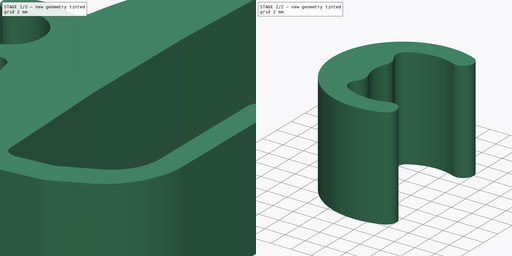
[diagram: build sequence overview — one tinted view per stage of 2, left to right]
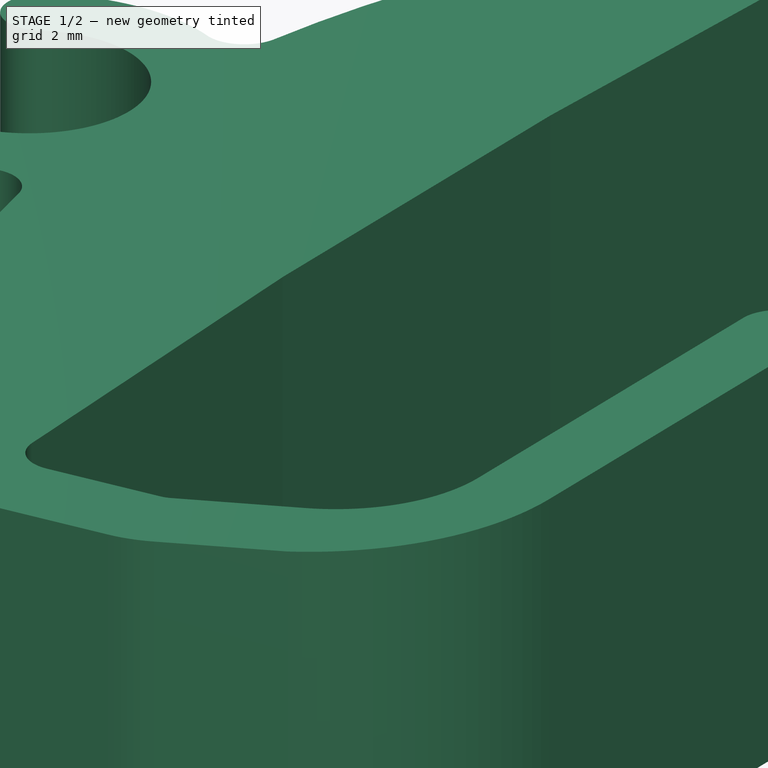
[diagram: stage 1 of 2 — iso view after this stage's code; geometry added in this stage tinted green]
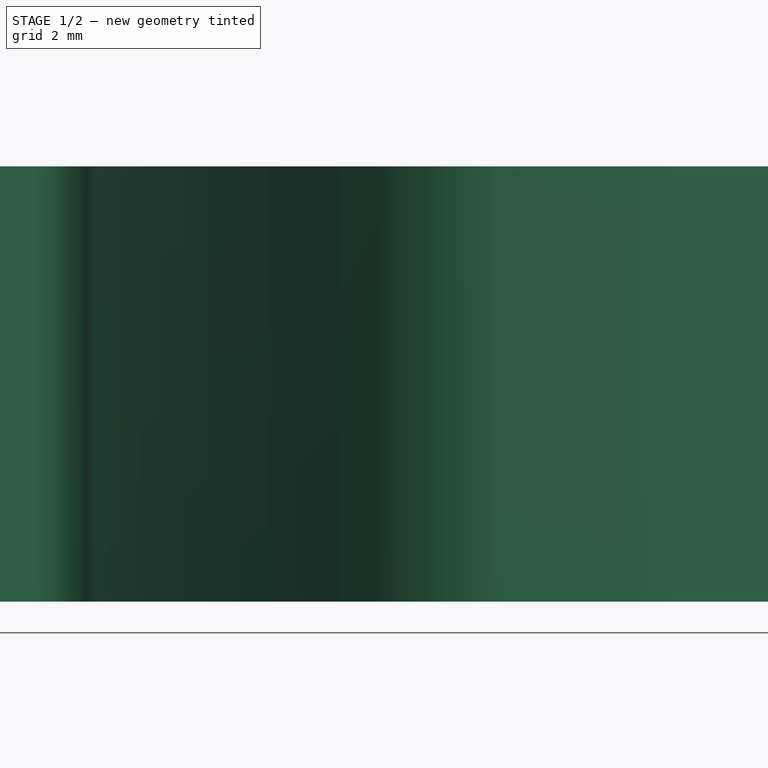
[diagram: stage 1 of 2 — front view after this stage's code; geometry added in this stage tinted green]
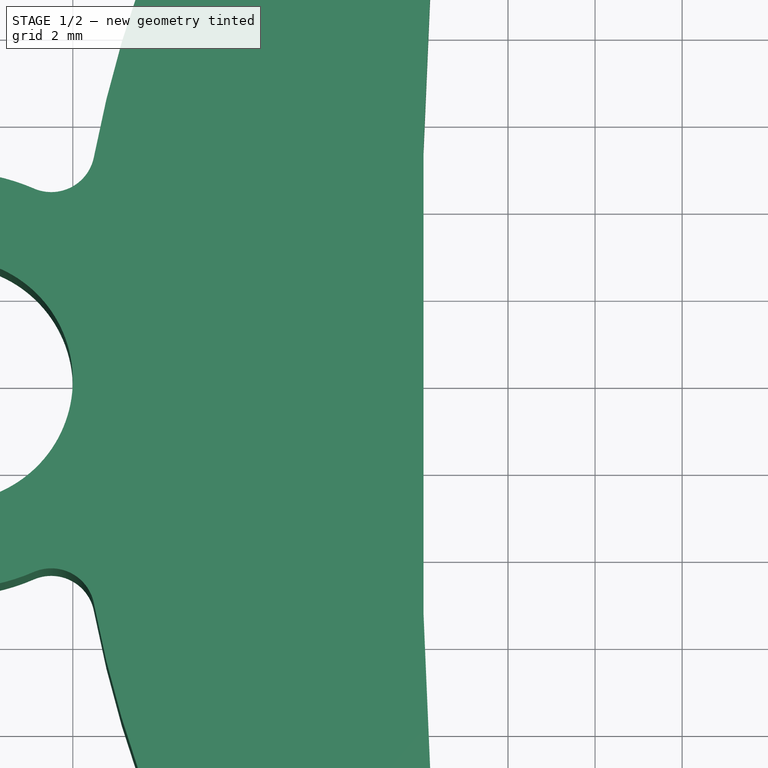
[diagram: stage 1 of 2 — top view after this stage's code; geometry added in this stage tinted green]
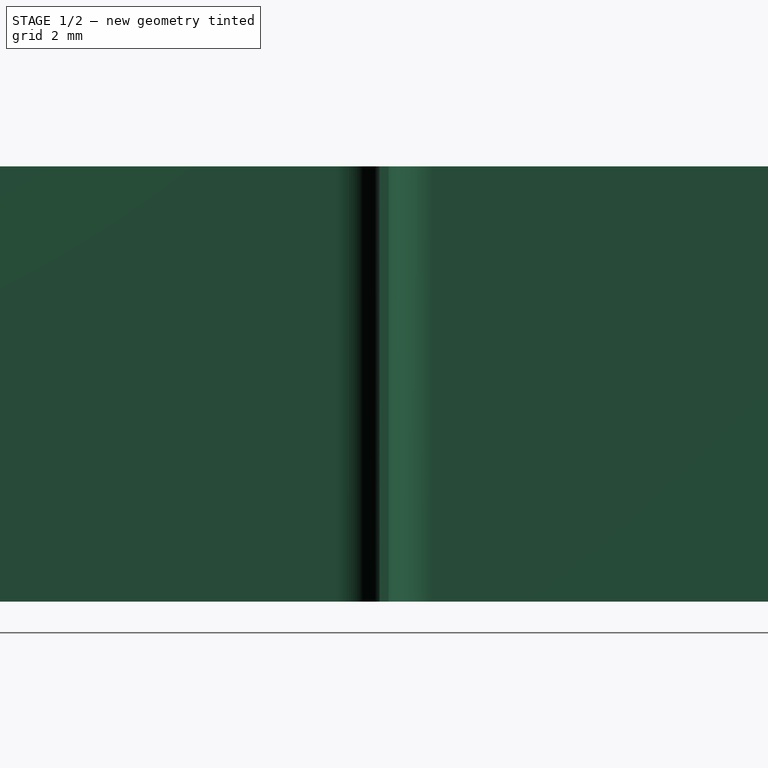
[diagram: stage 1 of 2 — right view after this stage's code; geometry added in this stage tinted green]
FCSTD DOCUMENT  (FreeCAD 0.21R33771 (Git))
Label: Q3LinkCableFix
License: All rights reserved
LicenseURL: http://en.wikipedia.org/wiki/All_rights_reserved
objects: Sketcher::SketchObject×2, PartDesign::Pad×2, PartDesign::Body×2, PartDesign::ShapeBinder×1
note: 9 computed .brp shape members not serialized (recipe doc carries the construction recipe); baked Part::Feature solids carry a one-line shape summary decoded from their .brp

FEATURE [Sketcher::SketchObject] Sketch002
  FullyConstrained = true
  MapMode = 5
  Support = -> [XY_Plane002]
  sketch-geometry (53):
    g0: ArcOfCircle CenterX=258 CenterY=-1e-15 CenterZ=0 NormalX=0 NormalY=0 NormalZ=1 AngleXU=0 Radius=250 StartAngle=3.07729 EndAngle=3.20589
    g1: LineSegment StartX=8 StartY=-1e-15 StartZ=0 EndX=258 EndY=-1e-15 EndZ=0
    g2: LineSegment StartX=8.51665 StartY=16.0643 StartZ=0 EndX=8.51665 EndY=-16.0643 EndZ=0
    g3: ArcOfCircle CenterX=9.51459 CenterY=16 CenterZ=0 NormalX=0 NormalY=0 NormalZ=1 AngleXU=0 Radius=1 StartAngle=1.48353 EndAngle=3.07729
    g4: ArcOfCircle CenterX=9.51459 CenterY=-16 CenterZ=0 NormalX=0 NormalY=0 NormalZ=1 AngleXU=0 Radius=1 StartAngle=3.20589 EndAngle=4.79966
    g5: LineSegment StartX=9.60174 StartY=16.9962 StartZ=0 EndX=12.5903 EndY=16.7347 EndZ=0
    g6: LineSegment StartX=9.60174 StartY=-16.9962 StartZ=0 EndX=12.5903 EndY=-16.7347 EndZ=0
    g7: ArcOfCircle CenterX=12.5206 CenterY=-15.9378 CenterZ=0 NormalX=0 NormalY=0 NormalZ=1 AngleXU=0 Radius=0.8 StartAngle=4.79966 EndAngle=5.14872
    g8: ArcOfCircle CenterX=12.5206 CenterY=15.9378 CenterZ=0 NormalX=0 NormalY=0 NormalZ=1 AngleXU=0 Radius=0.8 StartAngle=1.13446 EndAngle=1.48353
    g9: LineSegment StartX=12.8587 StartY=16.6628 StartZ=0 EndX=15.6905 EndY=15.3423 EndZ=0
    g10: LineSegment StartX=12.8587 StartY=-16.6628 StartZ=0 EndX=15.6905 EndY=-15.3423 EndZ=0
    g11: ArcOfCircle CenterX=14 CenterY=11.7171 CenterZ=0 NormalX=0 NormalY=0 NormalZ=1 AngleXU=0 Radius=4 StartAngle=2e-16 EndAngle=1.13446
    g12: ArcOfCircle CenterX=14 CenterY=-11.7171 CenterZ=0 NormalX=0 NormalY=0 NormalZ=1 AngleXU=0 Radius=4 StartAngle=5.14872 EndAngle=6.28319
    g13: LineSegment StartX=18 StartY=11.7171 StartZ=0 EndX=18 EndY=1.1 EndZ=0
    g14: LineSegment StartX=18 StartY=-11.7171 StartZ=0 EndX=18 EndY=-1.1 EndZ=0
    g15: LineSegment StartX=18 StartY=11.7171 StartZ=0 EndX=20 EndY=11.7171 EndZ=0
    g16: LineSegment StartX=18 StartY=1.1 StartZ=0 EndX=20 EndY=1.1 EndZ=0
    g17: LineSegment StartX=18 StartY=-1.1 StartZ=0 EndX=20 EndY=-1.1 EndZ=0
    g18: LineSegment StartX=18 StartY=-11.7171 StartZ=0 EndX=20 EndY=-11.7171 EndZ=0
    g19: LineSegment StartX=20 StartY=11.7171 StartZ=0 EndX=20 EndY=1.1 EndZ=0
    g20: LineSegment StartX=20 StartY=-1.1 StartZ=0 EndX=20 EndY=-11.7171 EndZ=0
    g21: ArcOfCircle CenterX=19 CenterY=-1.1 CenterZ=0 NormalX=0 NormalY=0 NormalZ=1 AngleXU=0 Radius=1 StartAngle=-9e-16 EndAngle=3.14159
    g22: ArcOfCircle CenterX=19 CenterY=1.1 CenterZ=0 NormalX=0 NormalY=0 NormalZ=1 AngleXU=0 Radius=1 StartAngle=3.14159 EndAngle=6.28319
    g23: LineSegment StartX=19 StartY=0.1 StartZ=0 EndX=19 EndY=-0.1 EndZ=0
    g24: LineSegment StartX=8.51665 StartY=-17 StartZ=0 EndX=9.51459 EndY=-17 EndZ=0
    g25: LineSegment StartX=8.51665 StartY=17 StartZ=0 EndX=9.51459 EndY=17 EndZ=0
    g26: ArcOfCircle CenterX=13.2474 CenterY=11.7171 CenterZ=0 NormalX=0 NormalY=0 NormalZ=1 AngleXU=0 Radius=6.7526 StartAngle=0 EndAngle=1.03328
    g27: LineSegment StartX=15.6905 StartY=15.3423 StartZ=0 EndX=16.7048 EndY=17.5175 EndZ=0
    g28: LineSegment StartX=16.7048 StartY=17.5175 StartZ=0 EndX=13.873 EndY=18.838 EndZ=0
    g29: ArcOfCircle CenterX=12.5206 CenterY=15.9378 CenterZ=0 NormalX=0 NormalY=0 NormalZ=1 AngleXU=0 Radius=3.2 StartAngle=1.13446 EndAngle=1.48353
    g30: LineSegment StartX=12.7995 StartY=19.1256 StartZ=0 EndX=9.81092 EndY=19.3871 EndZ=0
    g31: ArcOfCircle CenterX=13.2474 CenterY=-11.7171 CenterZ=0 NormalX=0 NormalY=0 NormalZ=1 AngleXU=0 Radius=6.7526 StartAngle=5.2499 EndAngle=6.28319
    g32: LineSegment StartX=15.6905 StartY=-15.3423 StartZ=0 EndX=16.7048 EndY=-17.5175 EndZ=0
    g33: LineSegment StartX=16.7048 StartY=-17.5175 StartZ=0 EndX=13.873 EndY=-18.838 EndZ=0
    g34: ArcOfCircle CenterX=12.5206 CenterY=-15.9378 CenterZ=0 NormalX=0 NormalY=0 NormalZ=1 AngleXU=0 Radius=3.2 StartAngle=4.79966 EndAngle=5.14872
    g35: LineSegment StartX=12.7995 StartY=-19.1256 StartZ=0 EndX=9.81092 EndY=-19.3871 EndZ=0
    g36: ArcOfCircle CenterX=9.51459 CenterY=-16 CenterZ=0 NormalX=0 NormalY=0 NormalZ=1 AngleXU=0 Radius=3.4 StartAngle=3.87166 EndAngle=4.79966
    g37: ArcOfCircle CenterX=9.51459 CenterY=16 CenterZ=0 NormalX=0 NormalY=0 NormalZ=1 AngleXU=0 Radius=3.4 StartAngle=1.48353 EndAngle=2.41153
    g38: ArcOfCircle CenterX=27.3908 CenterY=-1e-15 CenterZ=0 NormalX=0 NormalY=0 NormalZ=1 AngleXU=0 Radius=27.3908 StartAngle=2.41152 EndAngle=2.95299
    g39: ArcOfCircle CenterX=27.3908 CenterY=-1e-15 CenterZ=0 NormalX=0 NormalY=0 NormalZ=1 AngleXU=0 Radius=27.3908 StartAngle=2.95299 EndAngle=3.3302
    g40: ArcOfCircle CenterX=27.3908 CenterY=-1e-15 CenterZ=0 NormalX=0 NormalY=0 NormalZ=1 AngleXU=0 Radius=27.3908 StartAngle=3.3302 EndAngle=3.87166
    g41: LineSegment StartX=8 StartY=-1e-15 StartZ=0 EndX=0 EndY=0 EndZ=0
    g42: ArcOfCircle CenterX=-2.8 CenterY=5e-16 CenterZ=0 NormalX=0 NormalY=0 NormalZ=1 AngleXU=0 Radius=2.8 StartAngle=4.18879 EndAngle=8.37758
    g43: ArcOfCircle CenterX=-2.8 CenterY=5e-16 CenterZ=0 NormalX=0 NormalY=0 NormalZ=1 AngleXU=0 Radius=4.8 StartAngle=1.16239 EndAngle=2.0944
    g44: ArcOfCircle CenterX=-2.8 CenterY=5e-16 CenterZ=0 NormalX=0 NormalY=0 NormalZ=1 AngleXU=0 Radius=4.8 StartAngle=4.18879 EndAngle=5.1208
    g45: ArcOfCircle CenterX=-0.496536 CenterY=5.32297 CenterZ=0 NormalX=0 NormalY=0 NormalZ=1 AngleXU=0 Radius=1 StartAngle=4.30398 EndAngle=6.09458
    g46: ArcOfCircle CenterX=-0.496536 CenterY=-5.32297 CenterZ=0 NormalX=0 NormalY=0 NormalZ=1 AngleXU=0 Radius=1 StartAngle=0.188605 EndAngle=1.9792
    g47: ArcOfCircle CenterX=-4.7 CenterY=3.2909 CenterZ=0 NormalX=0 NormalY=0 NormalZ=1 AngleXU=0 Radius=1 StartAngle=2.0944 EndAngle=5.23599
    g48: ArcOfCircle CenterX=-4.7 CenterY=-3.2909 CenterZ=0 NormalX=0 NormalY=0 NormalZ=1 AngleXU=0 Radius=1 StartAngle=1.0472 EndAngle=4.18879
    g49: LineSegment StartX=-5.2 StartY=4.15692 StartZ=0 EndX=-4.2 EndY=2.42487 EndZ=0
    g50: LineSegment StartX=-4.2 StartY=2.42487 StartZ=0 EndX=-2.8 EndY=4e-16 EndZ=0
    g51: LineSegment StartX=-2.8 StartY=5e-16 StartZ=0 EndX=-4.2 EndY=-2.42487 EndZ=0
    g52: LineSegment StartX=-4.2 StartY=-2.42487 StartZ=0 EndX=-5.2 EndY=-4.15692 EndZ=0
  constraints (136):
    c: Radius(g0) = 250
    c: PointOnObject(g1,g0)
    c: Coincident(g1,g0)
    c: Horizontal(g1)
    c: Coincident(g2,g0)
    c: Coincident(g2,g0)
    c: Vertical(g2)
    c: Tangent(g4,g0) = -1.5708
    c: Tangent(g3,g0) = -1.5708
    c: Equal(g3,g4)
    c: Radius(g3) = 1
    c: Angle(g2,g5) = 1.48353
    c: Tangent(g3,g5) = 1.5708
    c: Tangent(g4,g6) = -1.5708
    c: Symmetric(g5,g6,g1)
    c: Tangent(g5,g8) = 1.5708
    c: Tangent(g6,g7) = -1.5708
    c: Equal(g7,g8)
    c: Radius(g8) = 0.8
    c: Tangent(g7,g10) = -1.5708
    c: Tangent(g8,g9) = 1.5708
    c: Angle(g5,g9) = 2.79253
    c: Distance(g5,g3) = 3
    c: Equal(g9,g10)
    c: Tangent(g9,g11) = 1.5708
    c: Tangent(g10,g12) = -1.5708
    c: Equal(g11,g12)
    c: Radius(g11) = 4
    c: Vertical(g13)
    c: Vertical(g14)
    c: PointOnObject(g14,g13)
    c: Equal(g13,g14)
    c: Tangent(g11,g13) = 1.5708
    c: Tangent(g12,g14) = -1.5708
    c: Coincident(g15,g11)
    c: Horizontal(g15)
    c: Coincident(g16,g13)
    c: Horizontal(g16)
    c: Coincident(g17,g14)
    c: Horizontal(g17)
    c: Coincident(g18,g12)
    c: Horizontal(g18)
    c: Equal(g15,g16)
    c: Equal(g16,g17)
    c: Equal(g17,g18)
    c: DistanceX(g1,g11) = 10
    c: DistanceX(g15,g15) = 2
    c: Coincident(g19,g15)
    c: Coincident(g19,g16)
    c: Coincident(g20,g17)
    c: Coincident(g20,g18)
    c: PointOnObject(g21,g17)
    c: Coincident(g21,g14)
    c: Coincident(g21,g20)
    c: PointOnObject(g22,g16)
    c: Coincident(g22,g13)
    c: Coincident(g22,g19)
    c: PointOnObject(g23,g22)
    c: PointOnObject(g23,g21)
    c: PointOnObject(g22,g23)
    c: PointOnObject(g21,g23)
    c: DistanceY(g23,g23) = 0.2
    c: Horizontal(g24)
    c: Tangent(g24,g4) = -1.5708
    c: PointOnObject(g24,g2)
    c: Horizontal(g25)
    c: Tangent(g25,g3) = 1.5708
    c: PointOnObject(g25,g2)
    c: DistanceY(g24,g25) = 34
    c: Tangent(g19,g26) = 1.5708
    c: Coincident(g27,g9)
    c: Coincident(g27,g26)
    c: Distance(g27) = 2.4
    c: Perpendicular(g9,g27)
    c: Coincident(g28,g26)
    c: Coincident(g29,g8)
    c: Parallel(g28,g9)
    c: Parallel(g30,g5)
    c: Tangent(g28,g29) = -1.5708
    c: Tangent(g20,g31) = 1.5708
    c: Coincident(g32,g10)
    c: Coincident(g32,g31)
    c: PointOnObject(g12,g32)
    c: Coincident(g33,g31)
    c: Coincident(g34,g7)
    c: Tangent(g33,g34) = 1.5708
    c: Parallel(g33,g10)
    c: Tangent(g34,g35) = 1.5708
    c: Parallel(g35,g6)
    c: Equal(g32,g27)
    c: Tangent(g29,g30) = -1.5708
    c: Coincident(g36,g4)
    c: Tangent(g35,g36) = 1.5708
    c: Coincident(g37,g3)
    c: Tangent(g30,g37) = -1.5708
    c: PointOnObject(g38,g1)
    c: Coincident(g38,g37)
    c: Tangent(g36,g40) = -1.5708
    c: Coincident(g38,g39)
    c: Coincident(g38,g39)
    c: Coincident(g39,g40)
    c: Coincident(g39,g40)
    c: Coincident(g41,g1)
    c: PointOnObject(g41,g39)
    c: DistanceX(g41,g41) = 8
    c: Symmetric(g40,g38,g41)
    c: PointOnObject(g41,g42)
    c: Radius(g42) = 2.8
    c: Symmetric(g42,g42,g41)
    c: Coincident(g43,g42)
    c: Coincident(g44,g42)
    c: Equal(g46,g45)
    c: Tangent(g44,g46) = 1.5708
    c: Tangent(g43,g45) = 1.5708
    c: Tangent(g40,g46) = 1.5708
    c: Tangent(g38,g45) = 1.5708
    c: Coincident(g49,g43)
    c: Coincident(g50,g42)
    c: Coincident(g51,g42)
    c: Coincident(g52,g44)
    c: Coincident(g47,g43)
    c: Coincident(g47,g42)
    c: Coincident(g48,g42)
    c: Coincident(g48,g44)
    c: Coincident(g49,g50)
    c: PointOnObject(g47,g49)
    c: Coincident(g51,g52)
    c: PointOnObject(g48,g51)
    c: Coincident(g51,g42)
    c: Coincident(g49,g42)
    c: PointOnObject(g42,g49)
    c: PointOnObject(g42,g52)
    c: Angle(g50,g51) = 2.0944
    c: Coincident(g41,g-1)  '__ANCHOR__'
    c: Equal(g45,g47)
    c: Distance(g49) = 2
FEATURE [PartDesign::Pad] Pad002
  Direction = (0,0,1)
  Length = 10
  Length2 = 10
  Profile = -> Sketch002
  ReferenceAxis = -> Sketch002 [N_Axis]
  Type = 0
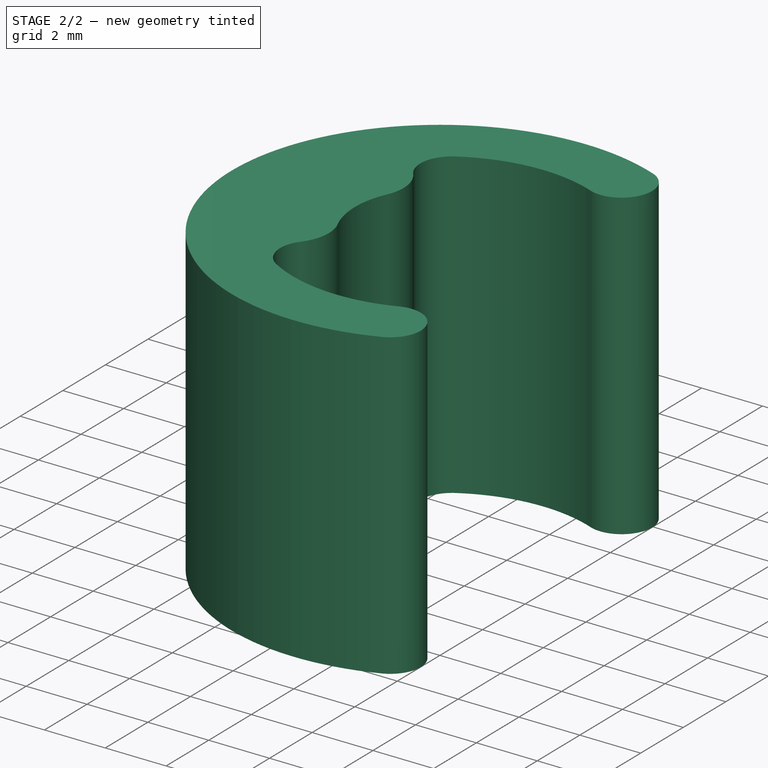
[diagram: stage 2 of 2 — iso view after this stage's code; geometry added in this stage tinted green]
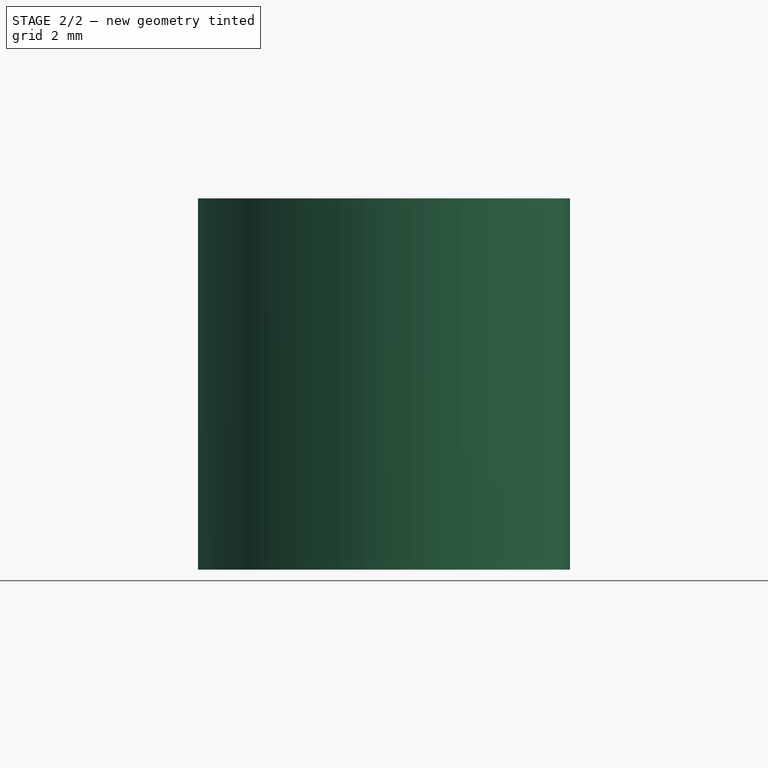
[diagram: stage 2 of 2 — front view after this stage's code; geometry added in this stage tinted green]
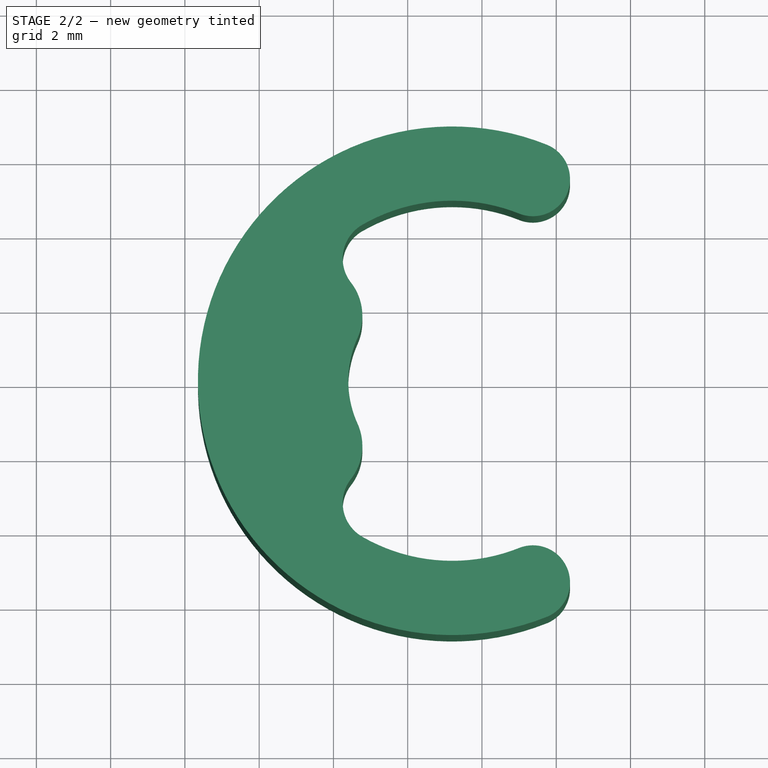
[diagram: stage 2 of 2 — top view after this stage's code; geometry added in this stage tinted green]
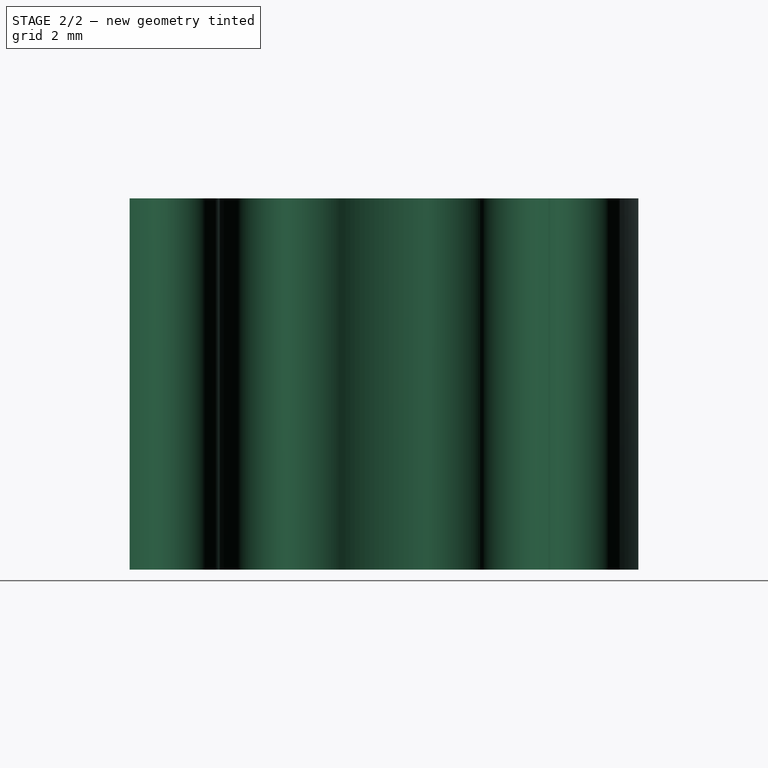
[diagram: stage 2 of 2 — right view after this stage's code; geometry added in this stage tinted green]
FEATURE [PartDesign::Body] Body002  label="Base"
  Group = -> [Sketch002,Pad002]
  Origin = -> Origin002
  Tip = -> Pad002
FEATURE [PartDesign::ShapeBinder] ShapeBinder001
  Support = -> [Sketch002]
  TraceSupport = false
FEATURE [Sketcher::SketchObject] Sketch003
  ExternalGeometry = -> [ShapeBinder001]
  FullyConstrained = true
  MapMode = 5
  Support = -> [XY_Plane003]
  sketch-geometry (15):
    g0: ArcOfCircle CenterX=-2.8 CenterY=5e-16 CenterZ=0 NormalX=0 NormalY=0 NormalZ=1 AngleXU=0 Radius=2.8 StartAngle=2.71638 EndAngle=3.56681
    g1: ArcOfCircle CenterX=-6.67204 CenterY=1.75343 CenterZ=0 NormalX=0 NormalY=0 NormalZ=1 AngleXU=0 Radius=1.45055 StartAngle=5.85797 EndAngle=6.94539
    g2: ArcOfCircle CenterX=-6.67204 CenterY=-1.75343 CenterZ=0 NormalX=0 NormalY=0 NormalZ=1 AngleXU=0 Radius=1.45055 StartAngle=5.62099 EndAngle=6.7084
    g3: ArcOfCircle CenterX=-4.7 CenterY=3.2909 CenterZ=0 NormalX=0 NormalY=0 NormalZ=1 AngleXU=0 Radius=1.05 StartAngle=2.0944 EndAngle=3.80379
    g4: ArcOfCircle CenterX=-2.8 CenterY=5e-16 CenterZ=0 NormalX=0 NormalY=0 NormalZ=1 AngleXU=0 Radius=4.85 StartAngle=1.19047 EndAngle=2.0944
    g5: LineSegment StartX=-0.999546 StartY=4.50343 StartZ=0 EndX=-1.01811 EndY=4.457 EndZ=0
    g6: ArcOfCircle CenterX=-4.7 CenterY=-3.2909 CenterZ=0 NormalX=0 NormalY=0 NormalZ=1 AngleXU=0 Radius=1.05 StartAngle=2.47939 EndAngle=4.18879
    g7: ArcOfCircle CenterX=-2.8 CenterY=5e-16 CenterZ=0 NormalX=0 NormalY=0 NormalZ=1 AngleXU=0 Radius=4.85 StartAngle=4.18879 EndAngle=5.09272
    g8: LineSegment StartX=-1.01811 StartY=-4.457 StartZ=0 EndX=-0.999546 EndY=-4.50343 EndZ=0
    g9: ArcOfCircle CenterX=-0.628319 CenterY=5.43197 CenterZ=0 NormalX=0 NormalY=0 NormalZ=1 AngleXU=0 Radius=1 StartAngle=4.33206 EndAngle=7.47365
    g10: ArcOfCircle CenterX=-0.628319 CenterY=-5.43197 CenterZ=0 NormalX=0 NormalY=0 NormalZ=1 AngleXU=0 Radius=1 StartAngle=5.09272 EndAngle=8.23431
    g11: ArcOfCircle CenterX=-2.8 CenterY=5e-16 CenterZ=0 NormalX=0 NormalY=0 NormalZ=1 AngleXU=0 Radius=6.85 StartAngle=1.19047 EndAngle=5.09272
    g12: LineSegment StartX=0.353403 StartY=-5.24165 StartZ=0 EndX=0.500661 EndY=-5.2131 EndZ=0
    g13: LineSegment StartX=0.353403 StartY=5.24165 StartZ=0 EndX=0.500661 EndY=5.2131 EndZ=0
    g14: ArcOfCircle CenterX=-2.8 CenterY=5e-16 CenterZ=0 NormalX=0 NormalY=0 NormalZ=1 AngleXU=0 Radius=3.8 StartAngle=3.91159 EndAngle=8.65478
  constraints (40):
    c: Coincident(g0,g-8)
    c: Equal(g0,g-6)
    c: Equal(g1,g2)
    c: Tangent(g0,g2) = 1.5708
    c: Tangent(g0,g1) = 1.5708
    c: Coincident(g3,g-5)
    c: Coincident(g4,g0)
    c: Coincident(g5,g4)
    c: PointOnObject(g0,g5)
    c: Distance(g5) = 0.05
    c: Tangent(g3,g1) = 1.5708
    c: Tangent(g3,g4) = -1.5708
    c: Coincident(g6,g-7)
    c: Coincident(g7,g0)
    c: Tangent(g2,g6) = 1.5708
    c: Tangent(g6,g7) = -1.5708
    c: Coincident(g8,g7)
    c: Equal(g8,g5)
    c: Tangent(g4,g9) = 1.5708
    c: Equal(g9,g-5)
    c: PointOnObject(g5,g-4)
    c: PointOnObject(g8,g-8)
    c: Tangent(g7,g10) = 1.5708
    c: Coincident(g11,g0)
    c: Tangent(g10,g11) = -1.5708
    c: Tangent(g9,g11) = -1.5708
    c: PointOnObject(g12,g10)
    c: PointOnObject(g12,g-9)
    c: PointOnObject(g10,g12)
    c: PointOnObject(g-9,g12)
    c: Distance(g12) = 0.15
    c: PointOnObject(g13,g9)
    c: PointOnObject(g13,g-3)
    c: PointOnObject(g9,g13)
    c: PointOnObject(g-9,g13)
    c: Equal(g12,g13)
    c: Coincident(g14,g0)
    c: Coincident(g14,g1)
    c: Coincident(g14,g2)
    c: PointOnObject(g3,g14)
FEATURE [PartDesign::Pad] Pad
  Direction = (0,0,1)
  Length = 10
  Length2 = 10
  Profile = -> Sketch003
  ReferenceAxis = -> Sketch003 [N_Axis]
  Type = 0
  expr: Length = <<Pad002>>.Length
FEATURE [PartDesign::Body] Body003  label="Cap"
  Group = -> [ShapeBinder001,Sketch003,Pad]
  Origin = -> Origin003
  Tip = -> Pad
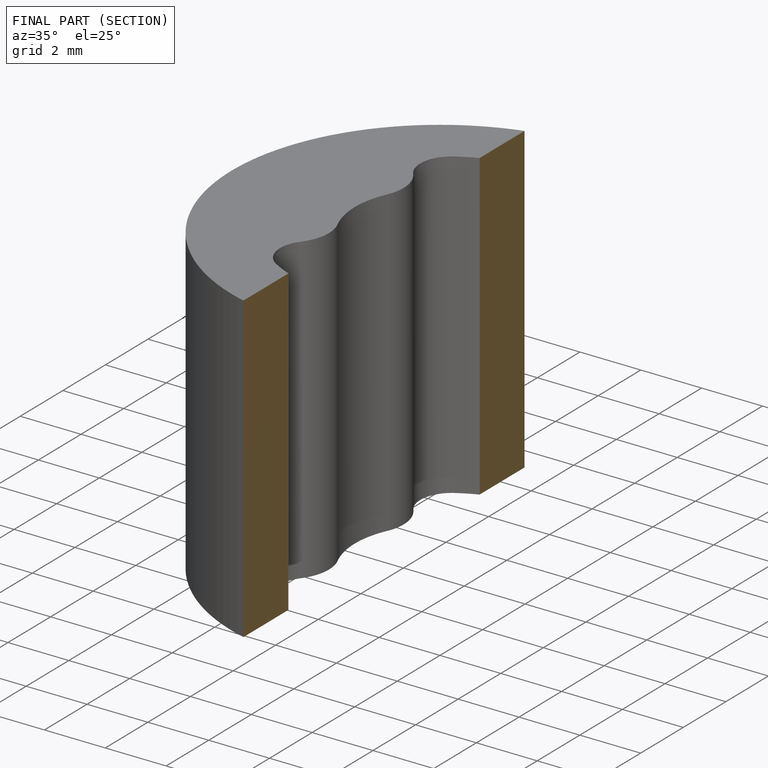
[diagram: finished part — half-section view (interior)]
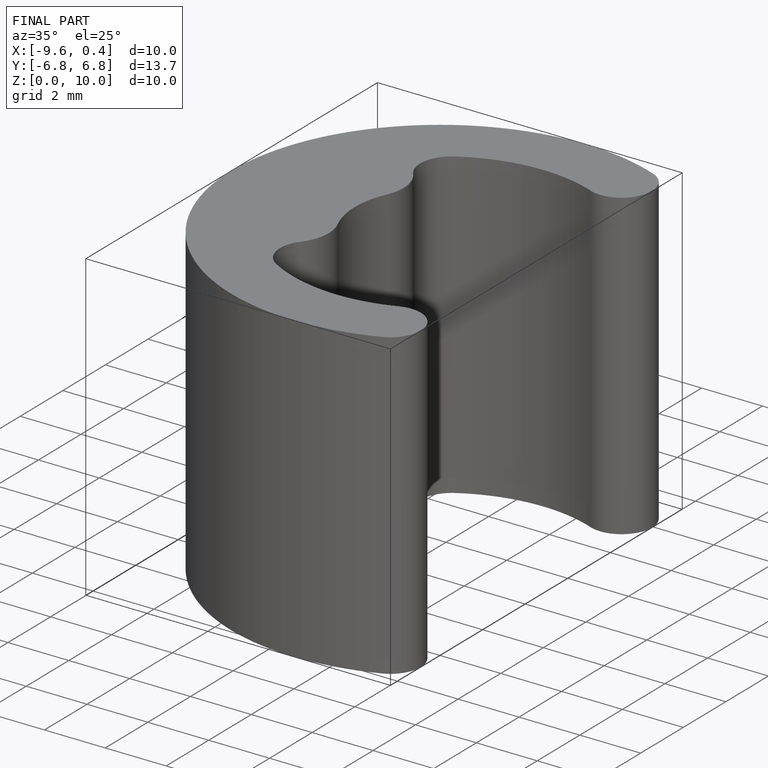
[diagram: finished part — iso view with bounding-box wireframe]
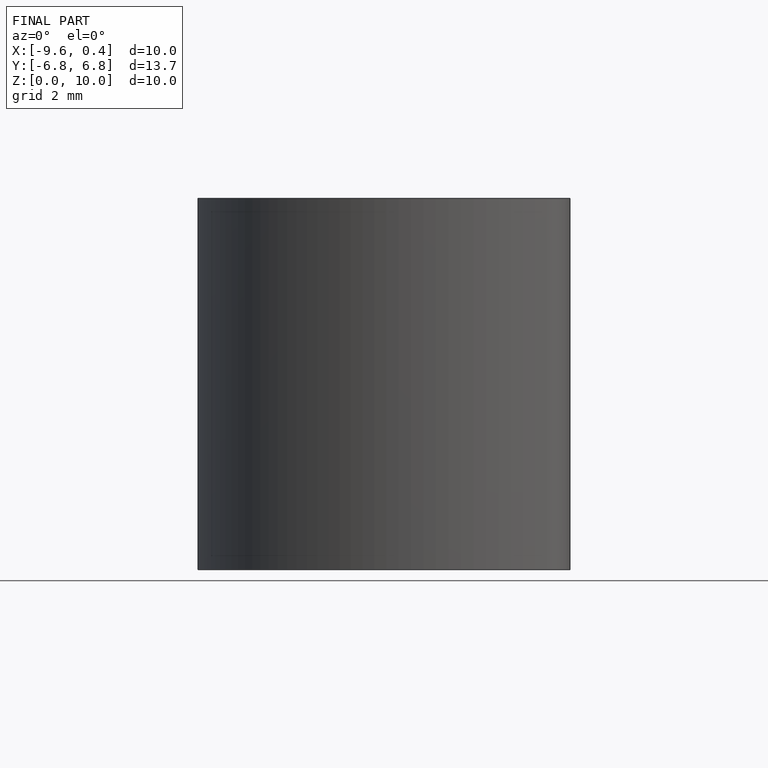
[diagram: finished part — front view with bounding-box wireframe]
